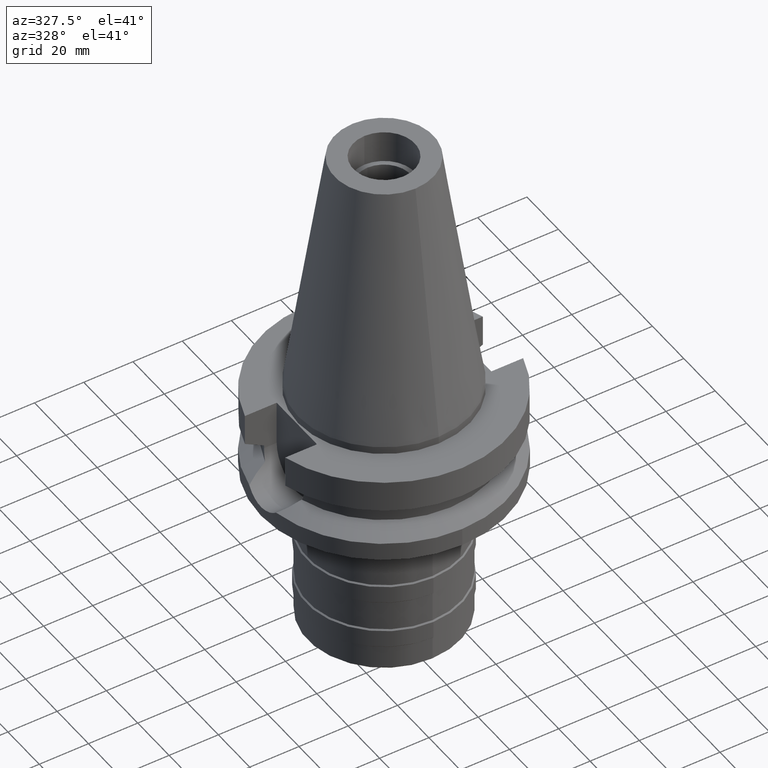
[diagram: clean part render]
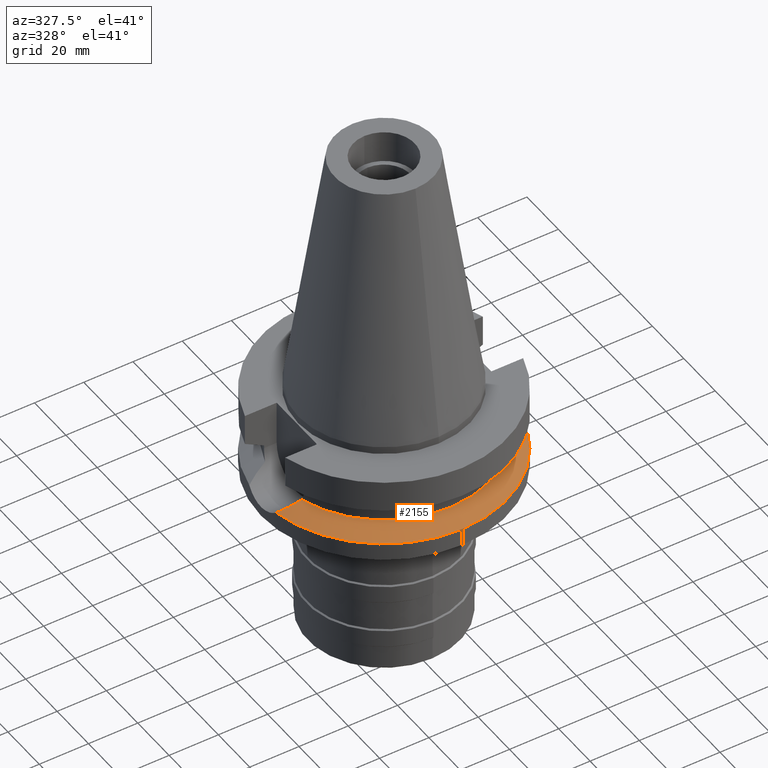
[diagram: same view with one face highlighted and labeled with its STEP entity id]
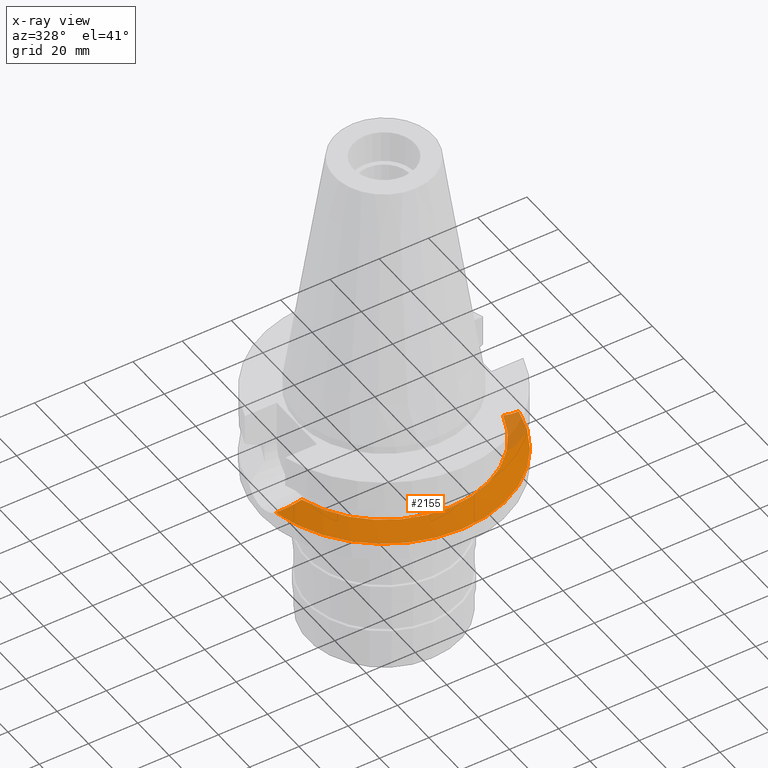
[diagram: x-ray of the same camera — body ghosted, the highlighted face saturated]
A machine part, auxiliary view. The second image highlights one B-rep face of the part: STEP entity #2155.
The next image is the same camera in x-ray: the body ghosted, the highlighted face saturated — about 8% of this face is hidden behind the body in this view.
In plain terms, the highlighted conical surface has half-angle 60 deg.
Its self-contained STEP definition (entity closure, byte-faithful):
#670=CARTESIAN_POINT('',(4.926250064874E1,-8.556052234130E0,-3.073730776427E1));
#713=CARTESIAN_POINT('',(-4.926250064874E1,-8.556052234130E0,
-3.073730776427E1));
#714=CARTESIAN_POINT('',(-4.845235583658E1,-9.020966755668E0,
-3.032240161663E1));
#715=CARTESIAN_POINT('',(-4.673934477650E1,-9.869591529515E0,
-2.944410370767E1));
#716=CARTESIAN_POINT('',(-4.393441300852E1,-1.091937648378E1,
-2.800144561483E1));
#717=CARTESIAN_POINT('',(-4.190282156491E1,-1.148100758959E1,
-2.695221940699E1));
#718=CARTESIAN_POINT('',(-4.085052569294E1,-1.172538061688E1,
-2.640718074535E1));
#723=CARTESIAN_POINT('',(0.E0,0.E0,-2.640718074535E1));
#724=DIRECTION('',(0.E0,0.E0,1.E0));
#725=DIRECTION('',(-9.611888398338E-1,-2.758913086325E-1,0.E0));
#726=AXIS2_PLACEMENT_3D('',#723,#724,#725);
#731=CARTESIAN_POINT('',(0.E0,0.E0,-2.640718074535E1));
#732=DIRECTION('',(0.E0,0.E0,1.E0));
#733=DIRECTION('',(0.E0,-1.E0,0.E0));
#734=AXIS2_PLACEMENT_3D('',#731,#732,#733);
#739=CARTESIAN_POINT('',(4.085052569294E1,-1.172538061688E1,-2.640718074535E1));
#740=CARTESIAN_POINT('',(4.174594715733E1,-1.151743828832E1,-2.687096600723E1));
#741=CARTESIAN_POINT('',(4.343721622334E1,-1.105946298627E1,-2.774476655674E1));
#742=CARTESIAN_POINT('',(4.566234912810E1,-1.028616050380E1,-2.889040843776E1));
#743=CARTESIAN_POINT('',(4.760808457876E1,-9.448875364254E0,-2.988960396930E1));
#744=CARTESIAN_POINT('',(4.873941709980E1,-8.856232071399E0,-3.046941667008E1));
#745=CARTESIAN_POINT('',(4.926250064874E1,-8.556052234130E0,-3.073730776427E1));
#750=CARTESIAN_POINT('',(0.E0,0.E0,-3.073730776427E1));
#751=DIRECTION('',(0.E0,0.E0,-1.E0));
#752=DIRECTION('',(9.852500129747E-1,-1.711210446826E-1,0.E0));
#753=AXIS2_PLACEMENT_3D('',#750,#751,#752);
#758=CARTESIAN_POINT('',(0.E0,0.E0,-3.073730776427E1));
#759=DIRECTION('',(0.E0,0.E0,-1.E0));
#760=DIRECTION('',(0.E0,-1.E0,0.E0));
#761=AXIS2_PLACEMENT_3D('',#758,#759,#760);
#1386=VERTEX_POINT('',#670);
#1389=CARTESIAN_POINT('',(0.E0,-5.E1,-3.073730776427E1));
#1390=VERTEX_POINT('',#1389);
#1391=VERTEX_POINT('',#739);
#1402=VERTEX_POINT('',#713);
#1403=VERTEX_POINT('',#718);
#1404=CARTESIAN_POINT('',(0.E0,-4.25E1,-2.640718074535E1));
#1405=VERTEX_POINT('',#1404);
#2138=CARTESIAN_POINT('',(0.E0,0.E0,-2.857224425481E1));
#2139=DIRECTION('',(0.E0,0.E0,-1.E0));
#2140=DIRECTION('',(0.E0,-1.E0,0.E0));
#2141=AXIS2_PLACEMENT_3D('',#2138,#2139,#2140);
#2142=CONICAL_SURFACE('',#2141,4.625E1,6.E1);
#2144=ORIENTED_EDGE('',*,*,#2143,.T.);
#2146=ORIENTED_EDGE('',*,*,#2145,.T.);
#2148=ORIENTED_EDGE('',*,*,#2147,.T.);
#2149=ORIENTED_EDGE('',*,*,#2119,.T.);
#2150=ORIENTED_EDGE('',*,*,#2107,.T.);
#2152=ORIENTED_EDGE('',*,*,#2151,.T.);
#2153=EDGE_LOOP('',(#2144,#2146,#2148,#2149,#2150,#2152));
#2154=FACE_OUTER_BOUND('',#2153,.F.);
#719=B_SPLINE_CURVE_WITH_KNOTS('',3,(#713,#714,#715,#716,#717,#718),
.UNSPECIFIED.,.F.,.F.,(4,1,1,4),(0.E0,3.333333333333E-1,6.666666666667E-1,1.E0),
.UNSPECIFIED.);
#727=CIRCLE('',#726,4.25E1);
#735=CIRCLE('',#734,4.25E1);
#746=B_SPLINE_CURVE_WITH_KNOTS('',3,(#739,#740,#741,#742,#743,#744,#745),
.UNSPECIFIED.,.F.,.F.,(4,1,1,1,4),(0.E0,2.5E-1,5.E-1,7.5E-1,1.E0),
.UNSPECIFIED.);
#754=CIRCLE('',#753,5.E1);
#762=CIRCLE('',#761,5.E1);
#2107=EDGE_CURVE('',#1386,#1390,#754,.T.);
#2119=EDGE_CURVE('',#1391,#1386,#746,.T.);
#2143=EDGE_CURVE('',#1402,#1403,#719,.T.);
#2145=EDGE_CURVE('',#1403,#1405,#727,.T.);
#2147=EDGE_CURVE('',#1405,#1391,#735,.T.);
#2151=EDGE_CURVE('',#1390,#1402,#762,.T.);
#2155=ADVANCED_FACE('',(#2154),#2142,.T.);